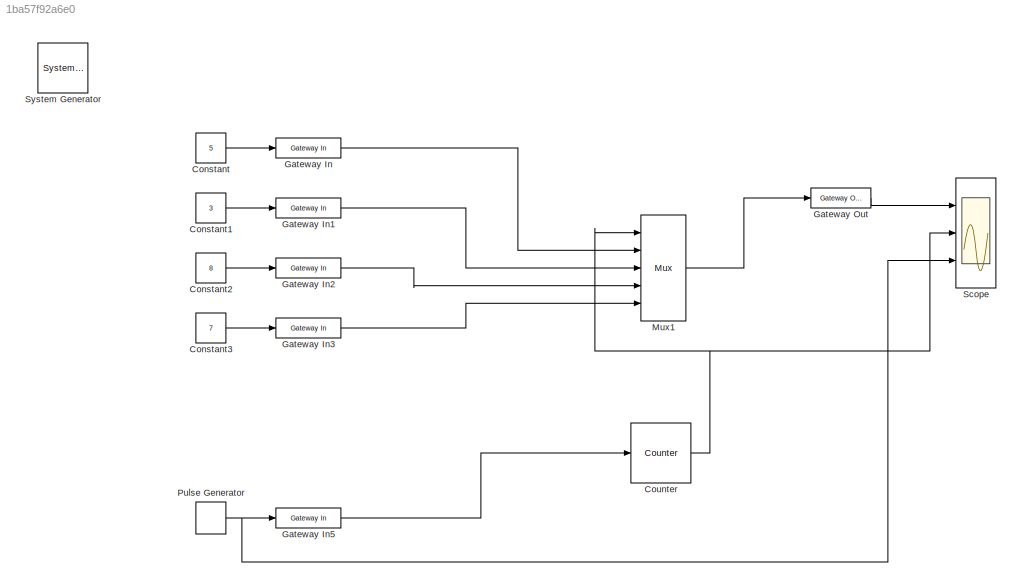
MODEL slx_1ba57f92a6e0
KIND model
CONFIG AbsTol = auto
CONFIG EnableMultiTasking = off
CONFIG FixedStep = auto
CONFIG MaxStep = auto
CONFIG MinStep = auto
CONFIG RelTol = 1e-3
CONFIG SampleTimeConstraint = Unconstrained
CONFIG SolverName = VariableStepAuto
CONFIG StartTime = 0.0
CONFIG StopTime = 10.0
BLOCK [Reference]  System Generator  REF=xbsIndex_r4/ System Generator
  AttributesFormatString = System\nGenerator
  Ports = []
  SourceBlock = xbsIndex_r4/ System Generator
  SourceType = Xilinx System Generator Block
  Tag = genX
  UserDataPersistent = on
BLOCK [Constant] Constant
  Value = 5
BLOCK [Constant] Constant1
  Value = 3
BLOCK [Constant] Constant2
  Value = 8
BLOCK [Constant] Constant3
  Value = 7
BLOCK [Reference] Counter  REF=hdlBasic/Counter
  Ports = [1, 1]
  SourceBlock = hdlBasic/Counter
  SourceType = Counter Block
BLOCK [Reference] Gateway In  REF=hdlBasic/Gateway In
  Ports = [1, 1]
  SourceBlock = hdlBasic/Gateway In
  SourceType = Gateway In Block
BLOCK [Reference] Gateway In1  REF=hdlBasic/Gateway In
  Ports = [1, 1]
  SourceBlock = hdlBasic/Gateway In
  SourceType = Gateway In Block
BLOCK [Reference] Gateway In2  REF=hdlBasic/Gateway In
  Ports = [1, 1]
  SourceBlock = hdlBasic/Gateway In
  SourceType = Gateway In Block
BLOCK [Reference] Gateway In3  REF=hdlBasic/Gateway In
  Ports = [1, 1]
  SourceBlock = hdlBasic/Gateway In
  SourceType = Gateway In Block
BLOCK [Reference] Gateway In5  REF=hdlBasic/Gateway In
  Ports = [1, 1]
  SourceBlock = hdlBasic/Gateway In
  SourceType = Gateway In Block
BLOCK [Reference] Gateway Out  REF=hdlBasic/Gateway Out
  Ports = [1, 1]
  SourceBlock = hdlBasic/Gateway Out
  SourceType = Gateway Out Block
BLOCK [Reference] Mux1  REF=hdlBasic/Mux
  Ports = [5, 1]
  SourceBlock = hdlBasic/Mux
  SourceType = Bus Multiplexer Block
BLOCK [DiscretePulseGenerator] Pulse Generator
  Period = 1
  PhaseDelay = 1
  Ports = [0, 1]
  PulseType = Time based
  PulseWidth = 5
BLOCK [Scope] Scope
  Floating = off
  NumInputPorts = 3
  Ports = [3]
  ScopeSpecificationString = Simulink.scopes.TimeScopeBlockCfg('CurrentConfiguration', extmgr.ConfigurationSet(extmgr.Configuration('Core','General UI',true),extmgr.Configuration('Core','Source UI',true),extmgr.Configuration('Sources','WiredSimulink',true),extmgr.Configuration('Visuals','Time Domain',true,'SerializedDisplays',{struct('MinYLimReal','2.375','MaxYLimReal','8.625','YLabelReal','','MinYLimMag','2.375','MaxYLimMag'...<+2007ch>
LINE Constant1:1 -> Gateway In1:1
LINE Constant2:1 -> Gateway In2:1
LINE Constant3:1 -> Gateway In3:1
LINE Constant:1 -> Gateway In:1
NET Counter:1 -> Mux1:1, Scope:2
LINE Gateway In1:1 -> Mux1:3
LINE Gateway In2:1 -> Mux1:4
LINE Gateway In3:1 -> Mux1:5
LINE Gateway In5:1 -> Counter:1
LINE Gateway In:1 -> Mux1:2
LINE Gateway Out:1 -> Scope:1
LINE Mux1:1 -> Gateway Out:1
NET Pulse Generator:1 -> Gateway In5:1, Scope:3
note: NET lines group one-source signal fan-out (src -> all destinations, sorted); 1:1 wires keep LINE
